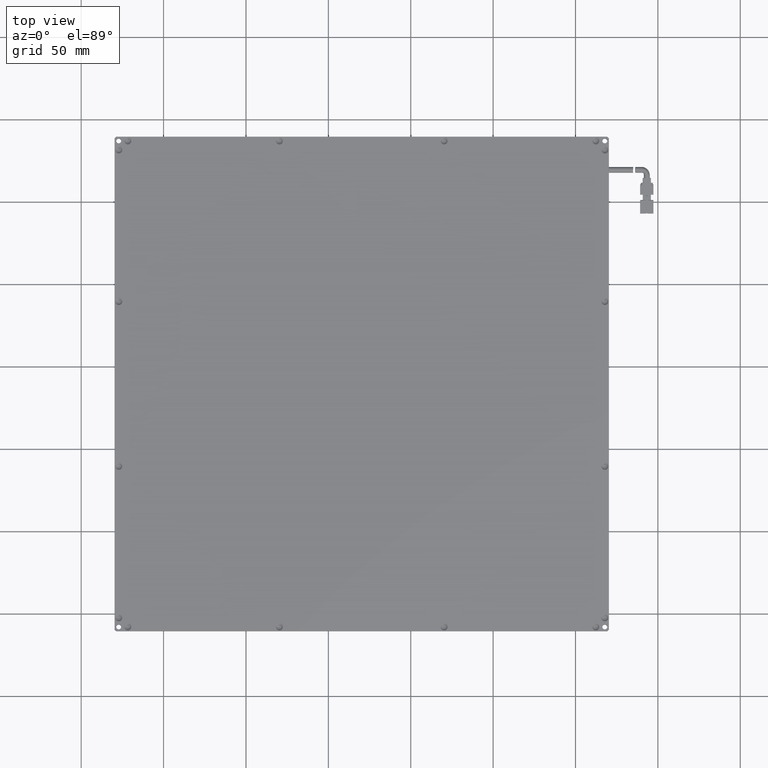
[diagram: clean part render]
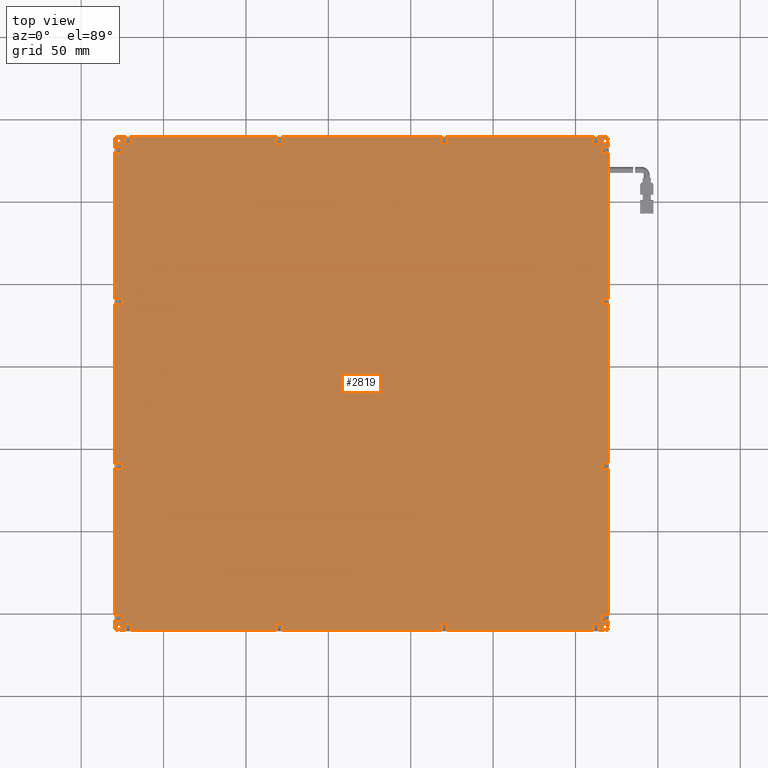
[diagram: same view with one face highlighted and labeled with its STEP entity id]
A machine part, top view. The second image highlights one B-rep face of the part: STEP entity #2819.
In plain terms, the highlighted planar face has unit normal (0, 0, -1).
Its self-contained STEP definition (entity closure, byte-faithful):
#63 = AXIS2_PLACEMENT_3D ( 'NONE', #7505, #17792, #8978 ) ;
#78 = VERTEX_POINT ( 'NONE', #6452 ) ;
#80 = CARTESIAN_POINT ( 'NONE',  ( 119.1898095717894000, -110.3461928934011100, 7.999999999999930700 ) ) ;
#106 = EDGE_CURVE ( 'NONE', #7603, #7879, #8985, .T. ) ;
#116 = VERTEX_POINT ( 'NONE', #6771 ) ;
#232 = EDGE_LOOP ( 'NONE', ( #4426, #6752 ) ) ;
#252 = EDGE_CURVE ( 'NONE', #12221, #8494, #4846, .T. ) ;
#301 = VERTEX_POINT ( 'NONE', #1532 ) ;
#304 = VERTEX_POINT ( 'NONE', #12963 ) ;
#404 = CIRCLE ( 'NONE', #3360, 2.199999999916157900 ) ;
#449 = CARTESIAN_POINT ( 'NONE',  ( 110.0726522843314100, 186.9538071065989000, 7.999999999985834400 ) ) ;
#454 = EDGE_CURVE ( 'NONE', #18631, #17599, #5308, .T. ) ;
#457 = CIRCLE ( 'NONE', #11933, 2.199999999997537300 ) ;
#482 = DIRECTION ( 'NONE',  ( 1.000000000000000000, 0.0000000000000000000, 0.0000000000000000000 ) ) ;
#488 = EDGE_CURVE ( 'NONE', #16117, #2054, #15185, .T. ) ;
#492 = EDGE_LOOP ( 'NONE', ( #9867, #718 ) ) ;
#508 = CARTESIAN_POINT ( 'NONE',  ( 120.0726522842640400, 188.3709643941241200, 7.999999999999932500 ) ) ;
#590 = CIRCLE ( 'NONE', #14096, 1.500000000000001300 ) ;
#642 = CARTESIAN_POINT ( 'NONE',  ( 117.7726522842639600, -108.0461928934010800, 7.999999999999930700 ) ) ;
#652 = DIRECTION ( 'NONE',  ( 0.0000000000000000000, -1.000000000000000000, 0.0000000000000000000 ) ) ;
#670 = CARTESIAN_POINT ( 'NONE',  ( -179.5273477157360600, 189.4538071065989000, 7.999999999999930700 ) ) ;
#712 = EDGE_CURVE ( 'NONE', #6444, #18386, #14701, .T. ) ;
#718 = ORIENTED_EDGE ( 'NONE', *, *, #4960, .F. ) ;
#800 = ORIENTED_EDGE ( 'NONE', *, *, #2464, .T. ) ;
#821 = VERTEX_POINT ( 'NONE', #7912 ) ;
#831 = DIRECTION ( 'NONE',  ( 0.0000000000000000000, -0.0000000000000000000, 1.000000000000000000 ) ) ;
#902 = AXIS2_PLACEMENT_3D ( 'NONE', #8313, #18618, #9787 ) ;
#977 = DIRECTION ( 'NONE',  ( 1.000000000000000000, 0.0000000000000000000, 0.0000000000000000000 ) ) ;
#1019 = EDGE_CURVE ( 'NONE', #9193, #18666, #8902, .T. ) ;
#1092 = CARTESIAN_POINT ( 'NONE',  ( 18.07265228431595400, 186.9538071065989000, 7.999999999985834400 ) ) ;
#1153 = DIRECTION ( 'NONE',  ( 0.0000000000000000000, -1.000000000000000000, 0.0000000000000000000 ) ) ;
#1168 = DIRECTION ( 'NONE',  ( 0.0000000000000000000, -1.000000000000000000, 0.0000000000000000000 ) ) ;
#1182 = EDGE_CURVE ( 'NONE', #11834, #14390, #11492, .T. ) ;
#1239 = CARTESIAN_POINT ( 'NONE',  ( -177.2273477157360400, -102.5461928934010800, 7.999999999985834400 ) ) ;
#1245 = CARTESIAN_POINT ( 'NONE',  ( 117.7726522842639600, -102.5461928934010800, 8.000000000042677000 ) ) ;
#1276 = CIRCLE ( 'NONE', #13205, 1.500000000000001300 ) ;
#1299 = CARTESIAN_POINT ( 'NONE',  ( -179.5273477157360600, 188.3709643941241700, 7.999999999999930700 ) ) ;
#1353 = EDGE_CURVE ( 'NONE', #2054, #16117, #9607, .T. ) ;
#1355 = AXIS2_PLACEMENT_3D ( 'NONE', #642, #10900, #2108 ) ;
#1444 = ORIENTED_EDGE ( 'NONE', *, *, #488, .F. ) ;
#1449 = DIRECTION ( 'NONE',  ( 1.000000000000000000, 0.0000000000000000000, 0.0000000000000000000 ) ) ;
#1471 = FACE_BOUND ( 'NONE', #7766, .T. ) ;
#1487 = AXIS2_PLACEMENT_3D ( 'NONE', #17145, #16958, #16902 ) ;
#1532 = CARTESIAN_POINT ( 'NONE',  ( -175.7273477157360400, 186.9538071065989000, 7.999999999999930700 ) ) ;
#1551 = CARTESIAN_POINT ( 'NONE',  ( -179.5273477157360600, 188.3709643941241700, 7.999999999999930700 ) ) ;
#1578 = CIRCLE ( 'NONE', #18961, 2.199999999916157900 ) ;
#1625 = AXIS2_PLACEMENT_3D ( 'NONE', #14870, #16046, #15979 ) ;
#1721 = DIRECTION ( 'NONE',  ( 0.0000000000000000000, 0.0000000000000000000, -1.000000000000000000 ) ) ;
#1757 = DIRECTION ( 'NONE',  ( 0.0000000000000000000, -0.0000000000000000000, 1.000000000000000000 ) ) ;
#1779 = VERTEX_POINT ( 'NONE', #7081 ) ;
#1798 = CARTESIAN_POINT ( 'NONE',  ( 112.2726522842639400, -108.0461928934010800, 7.999999999985834400 ) ) ;
#1808 = DIRECTION ( 'NONE',  ( 0.0000000000000000000, 9.856383386607548900E-017, 1.000000000000000000 ) ) ;
#1889 = CIRCLE ( 'NONE', #13303, 2.199999999916157900 ) ;
#1941 = FACE_BOUND ( 'NONE', #5983, .T. ) ;
#2054 = VERTEX_POINT ( 'NONE', #2450 ) ;
#2108 = DIRECTION ( 'NONE',  ( 1.000000000000000000, 0.0000000000000000000, 0.0000000000000000000 ) ) ;
#2185 = VERTEX_POINT ( 'NONE', #4350 ) ;
#2226 = EDGE_CURVE ( 'NONE', #11746, #11099, #14842, .T. ) ;
#2229 = CARTESIAN_POINT ( 'NONE',  ( 119.2726522842639600, 186.9538071065989000, 7.999999999999930700 ) ) ;
#2277 = EDGE_CURVE ( 'NONE', #7442, #821, #7677, .T. ) ;
#2394 = FACE_BOUND ( 'NONE', #17477, .T. ) ;
#2412 = CARTESIAN_POINT ( 'NONE',  ( 119.1898095717891800, 189.2538071065989100, 7.999999999999930700 ) ) ;
#2450 = CARTESIAN_POINT ( 'NONE',  ( 22.47265228421194300, -108.0461928934010800, 7.999999999985834400 ) ) ;
#2464 = EDGE_CURVE ( 'NONE', #17599, #18631, #1276, .T. ) ;
#2499 = AXIS2_PLACEMENT_3D ( 'NONE', #5572, #15857, #7046 ) ;
#2524 = CIRCLE ( 'NONE', #4294, 1.500000000000001300 ) ;
#2553 = CARTESIAN_POINT ( 'NONE',  ( 22.47265228421194300, 186.9538071065989000, 7.999999999985834400 ) ) ;
#2582 = CIRCLE ( 'NONE', #18138, 2.199999999916157900 ) ;
#2592 = AXIS2_PLACEMENT_3D ( 'NONE', #18742, #9929, #1168 ) ;
#2668 = EDGE_CURVE ( 'NONE', #5337, #18143, #15727, .T. ) ;
#2680 = DIRECTION ( 'NONE',  ( 1.000000000000000000, 0.0000000000000000000, 0.0000000000000000000 ) ) ;
#2684 = DIRECTION ( 'NONE',  ( 0.0000000000000000000, -1.000000000000000000, 0.0000000000000000000 ) ) ;
#2695 = CIRCLE ( 'NONE', #902, 2.199999999947993800 ) ;
#2696 = EDGE_CURVE ( 'NONE', #15438, #18906, #13888, .T. ) ;
#2727 = ORIENTED_EDGE ( 'NONE', *, *, #2696, .F. ) ;
#2815 = FACE_BOUND ( 'NONE', #8740, .T. ) ;
#2818 = LINE ( 'NONE', #670, #10174 ) ;
#2819 = ADVANCED_FACE ( 'NONE', ( #10636, #18470, #18913, #6738, #2815, #17992, #14115, #10171, #6283, #2394, #17538, #13646, #9714, #5823, #1941, #17087, #13196, #9240, #5364, #1471, #16625 ), #8646, .F. ) ;
#2862 = DIRECTION ( 'NONE',  ( 0.0000000000000000000, 9.856383386607548900E-017, 1.000000000000000000 ) ) ;
#2908 = AXIS2_PLACEMENT_3D ( 'NONE', #16027, #7189, #17482 ) ;
#2993 = ORIENTED_EDGE ( 'NONE', *, *, #6763, .F. ) ;
#3031 = ORIENTED_EDGE ( 'NONE', *, *, #14953, .T. ) ;
#3149 = EDGE_CURVE ( 'NONE', #14940, #17737, #6376, .T. ) ;
#3221 = DIRECTION ( 'NONE',  ( 1.000000000000000000, 0.0000000000000000000, 0.0000000000000000000 ) ) ;
#3360 = AXIS2_PLACEMENT_3D ( 'NONE', #1245, #11510, #2684 ) ;
#3386 = DIRECTION ( 'NONE',  ( 0.7071067811865474600, -0.7071067811865474600, 0.0000000000000000000 ) ) ;
#3403 = VECTOR ( 'NONE', #5567, 1000.000000000000100 ) ;
#3614 = VERTEX_POINT ( 'NONE', #2553 ) ;
#3667 = VECTOR ( 'NONE', #3386, 1000.000000000000100 ) ;
#3693 = EDGE_CURVE ( 'NONE', #14323, #11701, #17371, .T. ) ;
#3696 = CARTESIAN_POINT ( 'NONE',  ( 119.1898095717892400, 189.2538071065989100, 7.999999999999928900 ) ) ;
#3784 = CIRCLE ( 'NONE', #18381, 2.199999999916157900 ) ;
#3802 = EDGE_CURVE ( 'NONE', #6340, #14587, #11868, .T. ) ;
#3986 = ORIENTED_EDGE ( 'NONE', *, *, #252, .T. ) ;
#4074 = VERTEX_POINT ( 'NONE', #9801 ) ;
#4097 = LINE ( 'NONE', #1551, #11935 ) ;
#4110 = EDGE_CURVE ( 'NONE', #18666, #9193, #15286, .T. ) ;
#4167 = EDGE_CURVE ( 'NONE', #78, #5994, #13454, .T. ) ;
#4186 = CARTESIAN_POINT ( 'NONE',  ( 117.7726522842639600, -8.346192893484927200, 8.000000000042677000 ) ) ;
#4187 = EDGE_LOOP ( 'NONE', ( #12714, #15220 ) ) ;
#4199 = CARTESIAN_POINT ( 'NONE',  ( 117.7726522842639600, 181.4538071065989000, 8.000000000042677000 ) ) ;
#4294 = AXIS2_PLACEMENT_3D ( 'NONE', #4963, #15237, #6433 ) ;
#4321 = CIRCLE ( 'NONE', #1355, 1.500000000000001300 ) ;
#4334 = ORIENTED_EDGE ( 'NONE', *, *, #17325, .F. ) ;
#4350 = CARTESIAN_POINT ( 'NONE',  ( 117.7726522842639600, 91.65380710651504600, 8.000000000042677000 ) ) ;
#4426 = ORIENTED_EDGE ( 'NONE', *, *, #10690, .T. ) ;
#4504 = CARTESIAN_POINT ( 'NONE',  ( -79.72734771573603000, 186.9538071065989000, 7.999999999985834400 ) ) ;
#4758 = CARTESIAN_POINT ( 'NONE',  ( -179.4273477157499600, 89.45380710659888700, 7.999999999985834400 ) ) ;
#4766 = VERTEX_POINT ( 'NONE', #15222 ) ;
#4828 = EDGE_CURVE ( 'NONE', #304, #6710, #2818, .T. ) ;
#4829 = ORIENTED_EDGE ( 'NONE', *, *, #13660, .F. ) ;
#4846 = CIRCLE ( 'NONE', #11218, 1.500000000000001300 ) ;
#4960 = EDGE_CURVE ( 'NONE', #14587, #6340, #7873, .T. ) ;
#4963 = CARTESIAN_POINT ( 'NONE',  ( -177.2273477157360400, -108.0461928934010800, 7.999999999999930700 ) ) ;
#5024 = ORIENTED_EDGE ( 'NONE', *, *, #9112, .F. ) ;
#5093 = ORIENTED_EDGE ( 'NONE', *, *, #2668, .F. ) ;
#5126 = ORIENTED_EDGE ( 'NONE', *, *, #1019, .T. ) ;
#5142 = DIRECTION ( 'NONE',  ( 0.0000000000000000000, 1.000000000000000000, 0.0000000000000000000 ) ) ;
#5303 = EDGE_CURVE ( 'NONE', #1779, #7006, #17268, .T. ) ;
#5308 = CIRCLE ( 'NONE', #14776, 1.500000000000001300 ) ;
#5314 = ORIENTED_EDGE ( 'NONE', *, *, #13800, .F. ) ;
#5321 = EDGE_LOOP ( 'NONE', ( #8492, #18850 ) ) ;
#5337 = VERTEX_POINT ( 'NONE', #5642 ) ;
#5364 = FACE_BOUND ( 'NONE', #12173, .T. ) ;
#5399 = DIRECTION ( 'NONE',  ( -0.7071067811865489100, 0.7071067811865462400, 0.0000000000000000000 ) ) ;
#5421 = CARTESIAN_POINT ( 'NONE',  ( -177.2273477157360400, -8.346192893387172500, 8.000000000042677000 ) ) ;
#5493 = CARTESIAN_POINT ( 'NONE',  ( -178.6445050032614600, -110.3461928934011100, 7.999999999999932500 ) ) ;
#5561 = DIRECTION ( 'NONE',  ( 1.000000000000000000, -0.0000000000000000000, 0.0000000000000000000 ) ) ;
#5567 = DIRECTION ( 'NONE',  ( -0.7071067811865474600, -0.7071067811865474600, 0.0000000000000000000 ) ) ;
#5572 = CARTESIAN_POINT ( 'NONE',  ( -177.2273477157360400, 186.9538071065989000, 7.999999999999930700 ) ) ;
#5642 = CARTESIAN_POINT ( 'NONE',  ( -173.9273477157335600, -108.0461928934010800, 8.000000000042677000 ) ) ;
#5674 = DIRECTION ( 'NONE',  ( 0.0000000000000000000, -1.000000000000000000, 0.0000000000000000000 ) ) ;
#5806 = EDGE_CURVE ( 'NONE', #821, #7442, #11963, .T. ) ;
#5823 = FACE_BOUND ( 'NONE', #8702, .T. ) ;
#5932 = DIRECTION ( 'NONE',  ( 0.0000000000000000000, 0.0000000000000000000, -1.000000000000000000 ) ) ;
#5983 = EDGE_LOOP ( 'NONE', ( #15190, #5993 ) ) ;
#5988 = DIRECTION ( 'NONE',  ( 1.000000000000000000, 0.0000000000000000000, 0.0000000000000000000 ) ) ;
#5993 = ORIENTED_EDGE ( 'NONE', *, *, #9613, .F. ) ;
#5994 = VERTEX_POINT ( 'NONE', #8974 ) ;
#6011 = EDGE_LOOP ( 'NONE', ( #800, #6272 ) ) ;
#6029 = CARTESIAN_POINT ( 'NONE',  ( 110.0726522843314100, -108.0461928934010800, 7.999999999985834400 ) ) ;
#6104 = DIRECTION ( 'NONE',  ( 0.0000000000000000000, 9.856383386607486000E-017, 1.000000000000000000 ) ) ;
#6246 = CARTESIAN_POINT ( 'NONE',  ( 117.7726522842639600, 186.9538071065989000, 7.999999999999930700 ) ) ;
#6272 = ORIENTED_EDGE ( 'NONE', *, *, #454, .T. ) ;
#6281 = CARTESIAN_POINT ( 'NONE',  ( -177.2273477157360400, 183.6538071066128200, 8.000000000042677000 ) ) ;
#6283 = FACE_BOUND ( 'NONE', #18390, .T. ) ;
#6340 = VERTEX_POINT ( 'NONE', #9034 ) ;
#6376 = CIRCLE ( 'NONE', #1487, 2.200000000013913000 ) ;
#6391 = CARTESIAN_POINT ( 'NONE',  ( 117.7726522842639600, -108.0461928934010800, 7.999999999999930700 ) ) ;
#6414 = EDGE_CURVE ( 'NONE', #11701, #14323, #10089, .T. ) ;
#6433 = DIRECTION ( 'NONE',  ( 1.000000000000000000, 0.0000000000000000000, 0.0000000000000000000 ) ) ;
#6444 = VERTEX_POINT ( 'NONE', #16644 ) ;
#6452 = CARTESIAN_POINT ( 'NONE',  ( 117.7726522842639600, -100.3461928934849300, 8.000000000042677000 ) ) ;
#6470 = CARTESIAN_POINT ( 'NONE',  ( 117.7726522842639600, -10.54619289340108400, 8.000000000042677000 ) ) ;
#6519 = DIRECTION ( 'NONE',  ( 0.0000000000000000000, 0.0000000000000000000, -1.000000000000000000 ) ) ;
#6640 = DIRECTION ( 'NONE',  ( 1.000000000000000000, 0.0000000000000000000, 0.0000000000000000000 ) ) ;
#6708 = ORIENTED_EDGE ( 'NONE', *, *, #5806, .T. ) ;
#6710 = VERTEX_POINT ( 'NONE', #1299 ) ;
#6738 = FACE_BOUND ( 'NONE', #11305, .T. ) ;
#6752 = ORIENTED_EDGE ( 'NONE', *, *, #712, .T. ) ;
#6763 = EDGE_CURVE ( 'NONE', #18143, #5337, #457, .T. ) ;
#6771 = CARTESIAN_POINT ( 'NONE',  ( 117.7726522842639600, -12.74619289331724300, 8.000000000042677000 ) ) ;
#6817 = CIRCLE ( 'NONE', #2499, 1.500000000000001300 ) ;
#6842 = EDGE_CURVE ( 'NONE', #6710, #4766, #4097, .T. ) ;
#6845 = EDGE_LOOP ( 'NONE', ( #4334, #14677, #14228, #5024, #12393, #7077, #13079, #2727 ) ) ;
#6916 = EDGE_LOOP ( 'NONE', ( #6708, #14093 ) ) ;
#6958 = EDGE_CURVE ( 'NONE', #8494, #12221, #4321, .T. ) ;
#7006 = VERTEX_POINT ( 'NONE', #18200 ) ;
#7014 = DIRECTION ( 'NONE',  ( -0.0000000000000000000, 0.0000000000000000000, -1.000000000000000000 ) ) ;
#7017 = EDGE_CURVE ( 'NONE', #18929, #7418, #14220, .T. ) ;
#7046 = DIRECTION ( 'NONE',  ( 1.000000000000000000, 0.0000000000000000000, 0.0000000000000000000 ) ) ;
#7077 = ORIENTED_EDGE ( 'NONE', *, *, #4828, .F. ) ;
#7081 = CARTESIAN_POINT ( 'NONE',  ( -179.4273477157499600, -102.5461928934010800, 7.999999999985834400 ) ) ;
#7091 = CARTESIAN_POINT ( 'NONE',  ( -173.9273477157335600, 186.9538071065989000, 8.000000000042677000 ) ) ;
#7189 = DIRECTION ( 'NONE',  ( 0.0000000000000000000, -0.0000000000000000000, 1.000000000000000000 ) ) ;
#7295 = CIRCLE ( 'NONE', #19027, 2.199999999916157900 ) ;
#7418 = VERTEX_POINT ( 'NONE', #13764 ) ;
#7442 = VERTEX_POINT ( 'NONE', #4758 ) ;
#7447 = DIRECTION ( 'NONE',  ( -1.000000000000000000, 0.0000000000000000000, -0.0000000000000000000 ) ) ;
#7505 = CARTESIAN_POINT ( 'NONE',  ( -171.7273477157360200, 186.9538071065989000, 8.000000000042677000 ) ) ;
#7509 = DIRECTION ( 'NONE',  ( 0.0000000000000000000, 0.0000000000000000000, -1.000000000000000000 ) ) ;
#7572 = CARTESIAN_POINT ( 'NONE',  ( -179.7273477157360400, 189.4538071065989000, 7.999999999999930700 ) ) ;
#7590 = ORIENTED_EDGE ( 'NONE', *, *, #106, .F. ) ;
#7599 = CARTESIAN_POINT ( 'NONE',  ( 120.0726522842639800, 189.4538071065989000, 7.999999999999930700 ) ) ;
#7603 = VERTEX_POINT ( 'NONE', #12748 ) ;
#7636 = EDGE_CURVE ( 'NONE', #18906, #304, #15329, .T. ) ;
#7654 = CIRCLE ( 'NONE', #8809, 2.200000000013913000 ) ;
#7677 = CIRCLE ( 'NONE', #9599, 2.200000000013913000 ) ;
#7688 = EDGE_CURVE ( 'NONE', #5994, #78, #404, .T. ) ;
#7766 = EDGE_LOOP ( 'NONE', ( #15377, #10065 ) ) ;
#7812 = CARTESIAN_POINT ( 'NONE',  ( -79.72734771573603000, 186.9538071065989000, 7.999999999985834400 ) ) ;
#7873 = CIRCLE ( 'NONE', #18848, 2.199999999932533700 ) ;
#7879 = VERTEX_POINT ( 'NONE', #11890 ) ;
#7912 = CARTESIAN_POINT ( 'NONE',  ( -175.0273477157221300, 89.45380710659888700, 7.999999999985834400 ) ) ;
#7924 = CARTESIAN_POINT ( 'NONE',  ( 114.4726522841964900, -108.0461928934010800, 7.999999999985834400 ) ) ;
#7936 = DIRECTION ( 'NONE',  ( 0.0000000000000000000, -1.000000000000000000, 0.0000000000000000000 ) ) ;
#7962 = VECTOR ( 'NONE', #5399, 1000.000000000000000 ) ;
#8113 = CARTESIAN_POINT ( 'NONE',  ( -79.72734771573603000, -108.0461928934010800, 7.999999999985834400 ) ) ;
#8122 = AXIS2_PLACEMENT_3D ( 'NONE', #8406, #14103, #14042 ) ;
#8173 = DIRECTION ( 'NONE',  ( 0.0000000000000000000, -0.0000000000000000000, 1.000000000000000000 ) ) ;
#8230 = DIRECTION ( 'NONE',  ( 1.000000000000000000, 0.0000000000000000000, 0.0000000000000000000 ) ) ;
#8232 = DIRECTION ( 'NONE',  ( 1.000000000000000000, 0.0000000000000000000, 0.0000000000000000000 ) ) ;
#8313 = CARTESIAN_POINT ( 'NONE',  ( 20.27265228426394800, 186.9538071065989000, 7.999999999985834400 ) ) ;
#8406 = CARTESIAN_POINT ( 'NONE',  ( -177.2273477157360400, -108.0461928934010800, 7.999999999999930700 ) ) ;
#8477 = AXIS2_PLACEMENT_3D ( 'NONE', #17392, #8570, #18871 ) ;
#8492 = ORIENTED_EDGE ( 'NONE', *, *, #14869, .F. ) ;
#8494 = VERTEX_POINT ( 'NONE', #10928 ) ;
#8542 = DIRECTION ( 'NONE',  ( 1.000000000000000000, 0.0000000000000000000, 0.0000000000000000000 ) ) ;
#8570 = DIRECTION ( 'NONE',  ( 0.0000000000000000000, 9.856383386607491000E-017, 1.000000000000000000 ) ) ;
#8586 = AXIS2_PLACEMENT_3D ( 'NONE', #4504, #14792, #5988 ) ;
#8646 = PLANE ( 'NONE',  #15410 ) ;
#8653 = DIRECTION ( 'NONE',  ( -0.0000000000000000000, 0.0000000000000000000, -1.000000000000000000 ) ) ;
#8675 = CARTESIAN_POINT ( 'NONE',  ( -171.7273477157360200, -108.0461928934010800, 8.000000000042677000 ) ) ;
#8677 = CARTESIAN_POINT ( 'NONE',  ( -177.2273477157360400, 89.45380710659888700, 7.999999999985834400 ) ) ;
#8678 = VERTEX_POINT ( 'NONE', #9911 ) ;
#8702 = EDGE_LOOP ( 'NONE', ( #13597, #5314 ) ) ;
#8740 = EDGE_LOOP ( 'NONE', ( #5126, #15929 ) ) ;
#8761 = ORIENTED_EDGE ( 'NONE', *, *, #14044, .T. ) ;
#8809 = AXIS2_PLACEMENT_3D ( 'NONE', #19008, #10208, #1449 ) ;
#8902 = CIRCLE ( 'NONE', #12558, 2.200000000013913000 ) ;
#8974 = CARTESIAN_POINT ( 'NONE',  ( 117.7726522842639600, -104.7461928933172400, 8.000000000042677000 ) ) ;
#8978 = DIRECTION ( 'NONE',  ( 1.000000000000000000, 0.0000000000000000000, 0.0000000000000000000 ) ) ;
#8985 = CIRCLE ( 'NONE', #13543, 2.200000000038921000 ) ;
#8988 = AXIS2_PLACEMENT_3D ( 'NONE', #1798, #12069, #3221 ) ;
#8995 = DIRECTION ( 'NONE',  ( 1.000000000000000000, 0.0000000000000000000, 0.0000000000000000000 ) ) ;
#9034 = CARTESIAN_POINT ( 'NONE',  ( 114.4726522841964900, 186.9538071065989000, 7.999999999985834400 ) ) ;
#9071 = VERTEX_POINT ( 'NONE', #1092 ) ;
#9112 = EDGE_CURVE ( 'NONE', #4766, #11834, #14335, .T. ) ;
#9192 = CARTESIAN_POINT ( 'NONE',  ( -77.52734771569710400, 186.9538071065989000, 7.999999999985834400 ) ) ;
#9193 = VERTEX_POINT ( 'NONE', #11728 ) ;
#9201 = AXIS2_PLACEMENT_3D ( 'NONE', #18040, #9226, #482 ) ;
#9226 = DIRECTION ( 'NONE',  ( 0.0000000000000000000, -0.0000000000000000000, 1.000000000000000000 ) ) ;
#9240 = FACE_BOUND ( 'NONE', #15146, .T. ) ;
#9244 = VECTOR ( 'NONE', #5561, 1000.000000000000000 ) ;
#9251 = DIRECTION ( 'NONE',  ( 0.0000000000000000000, 0.0000000000000000000, -1.000000000000000000 ) ) ;
#9284 = DIRECTION ( 'NONE',  ( 1.000000000000000000, 0.0000000000000000000, 0.0000000000000000000 ) ) ;
#9390 = DIRECTION ( 'NONE',  ( 0.0000000000000000000, 9.856383386607486000E-017, 1.000000000000000000 ) ) ;
#9544 = CARTESIAN_POINT ( 'NONE',  ( 20.27265228426394800, -108.0461928934010800, 7.999999999985834400 ) ) ;
#9579 = CARTESIAN_POINT ( 'NONE',  ( -171.7273477157360200, 186.9538071065989000, 8.000000000042677000 ) ) ;
#9580 = CARTESIAN_POINT ( 'NONE',  ( 117.7726522842639600, 186.9538071065989000, 7.999999999999930700 ) ) ;
#9599 = AXIS2_PLACEMENT_3D ( 'NONE', #8677, #8653, #8542 ) ;
#9607 = CIRCLE ( 'NONE', #9817, 2.199999999947993800 ) ;
#9613 = EDGE_CURVE ( 'NONE', #2185, #8678, #7295, .T. ) ;
#9623 = DIRECTION ( 'NONE',  ( 0.0000000000000000000, -0.0000000000000000000, 1.000000000000000000 ) ) ;
#9646 = DIRECTION ( 'NONE',  ( 1.000000000000000000, 0.0000000000000000000, 0.0000000000000000000 ) ) ;
#9714 = FACE_BOUND ( 'NONE', #10331, .T. ) ;
#9738 = DIRECTION ( 'NONE',  ( 0.0000000000000000000, -0.0000000000000000000, 1.000000000000000000 ) ) ;
#9787 = DIRECTION ( 'NONE',  ( 1.000000000000000000, 0.0000000000000000000, 0.0000000000000000000 ) ) ;
#9801 = CARTESIAN_POINT ( 'NONE',  ( 120.0726522842640400, -109.4633501809265700, 7.999999999999918300 ) ) ;
#9817 = AXIS2_PLACEMENT_3D ( 'NONE', #9544, #9623, #9646 ) ;
#9867 = ORIENTED_EDGE ( 'NONE', *, *, #3802, .F. ) ;
#9905 = DIRECTION ( 'NONE',  ( 0.0000000000000000000, 9.856383386169525300E-017, 1.000000000000000000 ) ) ;
#9911 = CARTESIAN_POINT ( 'NONE',  ( 117.7726522842639600, 87.25380710668272900, 8.000000000042677000 ) ) ;
#9929 = DIRECTION ( 'NONE',  ( -0.0000000000000000000, -9.856383386169525300E-017, -1.000000000000000000 ) ) ;
#9941 = ORIENTED_EDGE ( 'NONE', *, *, #6958, .T. ) ;
#9952 = CARTESIAN_POINT ( 'NONE',  ( 119.2726522842639600, -108.0461928934010800, 7.999999999999930700 ) ) ;
#10019 = AXIS2_PLACEMENT_3D ( 'NONE', #18221, #9390, #652 ) ;
#10065 = ORIENTED_EDGE ( 'NONE', *, *, #7017, .F. ) ;
#10089 = CIRCLE ( 'NONE', #11668, 2.200000000038921000 ) ;
#10171 = FACE_BOUND ( 'NONE', #13807, .T. ) ;
#10174 = VECTOR ( 'NONE', #5142, 1000.000000000000000 ) ;
#10183 = AXIS2_PLACEMENT_3D ( 'NONE', #9579, #831, #11094 ) ;
#10185 = DIRECTION ( 'NONE',  ( 1.000000000000000000, 0.0000000000000000000, 0.0000000000000000000 ) ) ;
#10208 = DIRECTION ( 'NONE',  ( 0.0000000000000000000, -0.0000000000000000000, 1.000000000000000000 ) ) ;
#10218 = CARTESIAN_POINT ( 'NONE',  ( -177.2273477157360400, -12.74619289341499800, 8.000000000042677000 ) ) ;
#10331 = EDGE_LOOP ( 'NONE', ( #11999, #11534 ) ) ;
#10517 = CARTESIAN_POINT ( 'NONE',  ( -79.72734771573603000, -108.0461928934010800, 7.999999999985834400 ) ) ;
#10554 = ORIENTED_EDGE ( 'NONE', *, *, #11338, .F. ) ;
#10561 = EDGE_LOOP ( 'NONE', ( #3986, #9941 ) ) ;
#10564 = CARTESIAN_POINT ( 'NONE',  ( 117.7726522842639600, 89.45380710659888700, 8.000000000042677000 ) ) ;
#10636 = FACE_BOUND ( 'NONE', #232, .T. ) ;
#10690 = EDGE_CURVE ( 'NONE', #18386, #6444, #2524, .T. ) ;
#10900 = DIRECTION ( 'NONE',  ( 0.0000000000000000000, 0.0000000000000000000, -1.000000000000000000 ) ) ;
#10928 = CARTESIAN_POINT ( 'NONE',  ( 116.2726522842639600, -108.0461928934010800, 7.999999999999930700 ) ) ;
#11094 = DIRECTION ( 'NONE',  ( 1.000000000000000000, 0.0000000000000000000, 0.0000000000000000000 ) ) ;
#11099 = VERTEX_POINT ( 'NONE', #6029 ) ;
#11218 = AXIS2_PLACEMENT_3D ( 'NONE', #6391, #6519, #6640 ) ;
#11221 = AXIS2_PLACEMENT_3D ( 'NONE', #18724, #9905, #1153 ) ;
#11267 = CIRCLE ( 'NONE', #10019, 2.199999999916157900 ) ;
#11305 = EDGE_LOOP ( 'NONE', ( #8761, #3031 ) ) ;
#11338 = EDGE_CURVE ( 'NONE', #3614, #9071, #2695, .T. ) ;
#11456 = CIRCLE ( 'NONE', #17360, 2.200000000038921000 ) ;
#11492 = LINE ( 'NONE', #2412, #3667 ) ;
#11507 = DIRECTION ( 'NONE',  ( 0.0000000000000000000, -0.0000000000000000000, 1.000000000000000000 ) ) ;
#11510 = DIRECTION ( 'NONE',  ( 0.0000000000000000000, 9.856383386607491000E-017, 1.000000000000000000 ) ) ;
#11534 = ORIENTED_EDGE ( 'NONE', *, *, #4167, .F. ) ;
#11590 = CARTESIAN_POINT ( 'NONE',  ( 18.07265228431595400, -108.0461928934010800, 7.999999999985834400 ) ) ;
#11668 = AXIS2_PLACEMENT_3D ( 'NONE', #7812, #18107, #9284 ) ;
#11694 = CARTESIAN_POINT ( 'NONE',  ( 117.7726522842639600, 89.45380710659888700, 8.000000000042677000 ) ) ;
#11701 = VERTEX_POINT ( 'NONE', #9192 ) ;
#11709 = VERTEX_POINT ( 'NONE', #12194 ) ;
#11727 = VERTEX_POINT ( 'NONE', #15199 ) ;
#11728 = CARTESIAN_POINT ( 'NONE',  ( -177.2273477157360400, 179.2538071065849900, 8.000000000042677000 ) ) ;
#11746 = VERTEX_POINT ( 'NONE', #7924 ) ;
#11755 = CARTESIAN_POINT ( 'NONE',  ( -178.7273477157360400, 186.9538071065989000, 7.999999999999930700 ) ) ;
#11834 = VERTEX_POINT ( 'NONE', #3696 ) ;
#11868 = CIRCLE ( 'NONE', #9201, 2.199999999932533700 ) ;
#11890 = CARTESIAN_POINT ( 'NONE',  ( -81.92734771577495700, -108.0461928934010800, 7.999999999985834400 ) ) ;
#11933 = AXIS2_PLACEMENT_3D ( 'NONE', #8675, #18986, #10185 ) ;
#11935 = VECTOR ( 'NONE', #13235, 1000.000000000000000 ) ;
#11963 = CIRCLE ( 'NONE', #15094, 2.200000000013913000 ) ;
#11994 = EDGE_LOOP ( 'NONE', ( #15210, #13837 ) ) ;
#11999 = ORIENTED_EDGE ( 'NONE', *, *, #7688, .F. ) ;
#12026 = DIRECTION ( 'NONE',  ( 1.000000000000000000, 0.0000000000000000000, 0.0000000000000000000 ) ) ;
#12069 = DIRECTION ( 'NONE',  ( 0.0000000000000000000, -0.0000000000000000000, 1.000000000000000000 ) ) ;
#12077 = DIRECTION ( 'NONE',  ( 0.0000000000000000000, -1.000000000000000000, 0.0000000000000000000 ) ) ;
#12173 = EDGE_LOOP ( 'NONE', ( #15156, #17222 ) ) ;
#12194 = CARTESIAN_POINT ( 'NONE',  ( 117.7726522842639600, 179.2538071066827300, 8.000000000042677000 ) ) ;
#12221 = VERTEX_POINT ( 'NONE', #9952 ) ;
#12239 = ORIENTED_EDGE ( 'NONE', *, *, #5303, .F. ) ;
#12267 = DIRECTION ( 'NONE',  ( 1.000000000000000000, 0.0000000000000000000, 0.0000000000000000000 ) ) ;
#12305 = EDGE_CURVE ( 'NONE', #9071, #3614, #12782, .T. ) ;
#12321 = EDGE_CURVE ( 'NONE', #7006, #1779, #7654, .T. ) ;
#12333 = DIRECTION ( 'NONE',  ( 0.0000000000000000000, -0.0000000000000000000, 1.000000000000000000 ) ) ;
#12393 = ORIENTED_EDGE ( 'NONE', *, *, #6842, .F. ) ;
#12453 = CARTESIAN_POINT ( 'NONE',  ( 112.2726522842639400, -108.0461928934010800, 7.999999999985834400 ) ) ;
#12558 = AXIS2_PLACEMENT_3D ( 'NONE', #17663, #17601, #17853 ) ;
#12714 = ORIENTED_EDGE ( 'NONE', *, *, #3149, .F. ) ;
#12748 = CARTESIAN_POINT ( 'NONE',  ( -77.52734771569710400, -108.0461928934010800, 7.999999999985834400 ) ) ;
#12782 = CIRCLE ( 'NONE', #2908, 2.199999999947993800 ) ;
#12933 = VERTEX_POINT ( 'NONE', #11755 ) ;
#12963 = CARTESIAN_POINT ( 'NONE',  ( -179.5273477157360600, -109.4633501809265700, 7.999999999999932500 ) ) ;
#13031 = EDGE_CURVE ( 'NONE', #8678, #2185, #1889, .T. ) ;
#13079 = ORIENTED_EDGE ( 'NONE', *, *, #7636, .F. ) ;
#13111 = ORIENTED_EDGE ( 'NONE', *, *, #12305, .F. ) ;
#13181 = DIRECTION ( 'NONE',  ( 0.0000000000000000000, -1.000000000000000000, 0.0000000000000000000 ) ) ;
#13196 = FACE_BOUND ( 'NONE', #492, .T. ) ;
#13205 = AXIS2_PLACEMENT_3D ( 'NONE', #9580, #9251, #8230 ) ;
#13235 = DIRECTION ( 'NONE',  ( 0.7071067811865515700, 0.7071067811865435800, 0.0000000000000000000 ) ) ;
#13303 = AXIS2_PLACEMENT_3D ( 'NONE', #10564, #1808, #12077 ) ;
#13427 = VECTOR ( 'NONE', #13452, 1000.000000000000000 ) ;
#13452 = DIRECTION ( 'NONE',  ( -1.000000000000000000, 0.0000000000000000000, -0.0000000000000000000 ) ) ;
#13454 = CIRCLE ( 'NONE', #8477, 2.199999999916157900 ) ;
#13543 = AXIS2_PLACEMENT_3D ( 'NONE', #8113, #8173, #8232 ) ;
#13581 = CARTESIAN_POINT ( 'NONE',  ( -179.7273477157360400, -110.3461928934011100, 7.999999999999930700 ) ) ;
#13597 = ORIENTED_EDGE ( 'NONE', *, *, #16264, .F. ) ;
#13646 = FACE_BOUND ( 'NONE', #11994, .T. ) ;
#13660 = EDGE_CURVE ( 'NONE', #7879, #7603, #11456, .T. ) ;
#13764 = CARTESIAN_POINT ( 'NONE',  ( -169.5273477157385000, 186.9538071065989000, 8.000000000042677000 ) ) ;
#13765 = DIRECTION ( 'NONE',  ( 1.000000000000000000, 0.0000000000000000000, 0.0000000000000000000 ) ) ;
#13800 = EDGE_CURVE ( 'NONE', #17858, #116, #1578, .T. ) ;
#13807 = EDGE_LOOP ( 'NONE', ( #14077, #12239 ) ) ;
#13837 = ORIENTED_EDGE ( 'NONE', *, *, #14283, .F. ) ;
#13851 = DIRECTION ( 'NONE',  ( 0.0000000000000000000, -0.0000000000000000000, 1.000000000000000000 ) ) ;
#13888 = LINE ( 'NONE', #13581, #13427 ) ;
#13915 = CARTESIAN_POINT ( 'NONE',  ( -171.7273477157360200, -108.0461928934010800, 8.000000000042677000 ) ) ;
#14042 = DIRECTION ( 'NONE',  ( 1.000000000000000000, 0.0000000000000000000, 0.0000000000000000000 ) ) ;
#14044 = EDGE_CURVE ( 'NONE', #301, #12933, #6817, .T. ) ;
#14077 = ORIENTED_EDGE ( 'NONE', *, *, #12321, .F. ) ;
#14093 = ORIENTED_EDGE ( 'NONE', *, *, #2277, .T. ) ;
#14096 = AXIS2_PLACEMENT_3D ( 'NONE', #14727, #5932, #16224 ) ;
#14103 = DIRECTION ( 'NONE',  ( 0.0000000000000000000, 0.0000000000000000000, -1.000000000000000000 ) ) ;
#14115 = FACE_BOUND ( 'NONE', #4187, .T. ) ;
#14220 = CIRCLE ( 'NONE', #10183, 2.199999999997537300 ) ;
#14228 = ORIENTED_EDGE ( 'NONE', *, *, #1182, .F. ) ;
#14283 = EDGE_CURVE ( 'NONE', #11099, #11746, #18531, .T. ) ;
#14323 = VERTEX_POINT ( 'NONE', #15067 ) ;
#14335 = LINE ( 'NONE', #15839, #9244 ) ;
#14390 = VERTEX_POINT ( 'NONE', #508 ) ;
#14447 = CARTESIAN_POINT ( 'NONE',  ( -175.7273477157360400, -108.0461928934010800, 7.999999999999930700 ) ) ;
#14474 = DIRECTION ( 'NONE',  ( 0.0000000000000000000, 9.856383386607486000E-017, 1.000000000000000000 ) ) ;
#14516 = EDGE_LOOP ( 'NONE', ( #18434, #1444 ) ) ;
#14548 = EDGE_CURVE ( 'NONE', #14390, #4074, #17375, .T. ) ;
#14587 = VERTEX_POINT ( 'NONE', #449 ) ;
#14677 = ORIENTED_EDGE ( 'NONE', *, *, #14548, .F. ) ;
#14678 = LINE ( 'NONE', #17306, #3403 ) ;
#14701 = CIRCLE ( 'NONE', #8122, 1.500000000000001300 ) ;
#14727 = CARTESIAN_POINT ( 'NONE',  ( -177.2273477157360400, 186.9538071065989000, 7.999999999999930700 ) ) ;
#14776 = AXIS2_PLACEMENT_3D ( 'NONE', #6246, #1721, #8995 ) ;
#14792 = DIRECTION ( 'NONE',  ( 0.0000000000000000000, -0.0000000000000000000, 1.000000000000000000 ) ) ;
#14842 = CIRCLE ( 'NONE', #17847, 2.199999999932533700 ) ;
#14869 = EDGE_CURVE ( 'NONE', #11709, #11727, #3784, .T. ) ;
#14870 = CARTESIAN_POINT ( 'NONE',  ( 20.27265228426394800, -108.0461928934010800, 7.999999999985834400 ) ) ;
#14917 = CARTESIAN_POINT ( 'NONE',  ( 117.7726522842639600, -10.54619289340108400, 8.000000000042677000 ) ) ;
#14940 = VERTEX_POINT ( 'NONE', #10218 ) ;
#14953 = EDGE_CURVE ( 'NONE', #12933, #301, #590, .T. ) ;
#15007 = DIRECTION ( 'NONE',  ( -0.0000000000000000000, -1.000000000000000000, -0.0000000000000000000 ) ) ;
#15067 = CARTESIAN_POINT ( 'NONE',  ( -81.92734771577495700, 186.9538071065989000, 7.999999999985834400 ) ) ;
#15078 = CARTESIAN_POINT ( 'NONE',  ( 116.2726522842639600, 186.9538071065989000, 7.999999999999930700 ) ) ;
#15094 = AXIS2_PLACEMENT_3D ( 'NONE', #15822, #7014, #17287 ) ;
#15146 = EDGE_LOOP ( 'NONE', ( #10554, #13111 ) ) ;
#15156 = ORIENTED_EDGE ( 'NONE', *, *, #6414, .F. ) ;
#15185 = CIRCLE ( 'NONE', #1625, 2.199999999947993800 ) ;
#15190 = ORIENTED_EDGE ( 'NONE', *, *, #13031, .F. ) ;
#15199 = CARTESIAN_POINT ( 'NONE',  ( 117.7726522842639600, 183.6538071065150500, 8.000000000042677000 ) ) ;
#15210 = ORIENTED_EDGE ( 'NONE', *, *, #2226, .F. ) ;
#15220 = ORIENTED_EDGE ( 'NONE', *, *, #18904, .F. ) ;
#15222 = CARTESIAN_POINT ( 'NONE',  ( -178.6445050032613200, 189.2538071065989100, 7.999999999999934300 ) ) ;
#15237 = DIRECTION ( 'NONE',  ( 0.0000000000000000000, 0.0000000000000000000, -1.000000000000000000 ) ) ;
#15286 = CIRCLE ( 'NONE', #2592, 2.200000000013913000 ) ;
#15329 = LINE ( 'NONE', #18628, #7962 ) ;
#15377 = ORIENTED_EDGE ( 'NONE', *, *, #16251, .F. ) ;
#15410 = AXIS2_PLACEMENT_3D ( 'NONE', #7572, #7509, #7447 ) ;
#15438 = VERTEX_POINT ( 'NONE', #80 ) ;
#15727 = CIRCLE ( 'NONE', #15784, 2.199999999997537300 ) ;
#15784 = AXIS2_PLACEMENT_3D ( 'NONE', #13915, #13851, #13765 ) ;
#15822 = CARTESIAN_POINT ( 'NONE',  ( -177.2273477157360400, 89.45380710659888700, 7.999999999985834400 ) ) ;
#15839 = CARTESIAN_POINT ( 'NONE',  ( -179.7273477157360400, 189.2538071065989100, 7.999999999999930700 ) ) ;
#15857 = DIRECTION ( 'NONE',  ( 0.0000000000000000000, 0.0000000000000000000, -1.000000000000000000 ) ) ;
#15929 = ORIENTED_EDGE ( 'NONE', *, *, #4110, .T. ) ;
#15979 = DIRECTION ( 'NONE',  ( 1.000000000000000000, 0.0000000000000000000, 0.0000000000000000000 ) ) ;
#16027 = CARTESIAN_POINT ( 'NONE',  ( 20.27265228426394800, 186.9538071065989000, 7.999999999985834400 ) ) ;
#16046 = DIRECTION ( 'NONE',  ( 0.0000000000000000000, -0.0000000000000000000, 1.000000000000000000 ) ) ;
#16117 = VERTEX_POINT ( 'NONE', #11590 ) ;
#16224 = DIRECTION ( 'NONE',  ( 1.000000000000000000, 0.0000000000000000000, 0.0000000000000000000 ) ) ;
#16251 = EDGE_CURVE ( 'NONE', #7418, #18929, #18216, .T. ) ;
#16264 = EDGE_CURVE ( 'NONE', #116, #17858, #2582, .T. ) ;
#16396 = DIRECTION ( 'NONE',  ( 0.0000000000000000000, -1.000000000000000000, 0.0000000000000000000 ) ) ;
#16625 = FACE_OUTER_BOUND ( 'NONE', #6845, .T. ) ;
#16644 = CARTESIAN_POINT ( 'NONE',  ( -178.7273477157360400, -108.0461928934010800, 7.999999999999930700 ) ) ;
#16718 = CARTESIAN_POINT ( 'NONE',  ( -169.5273477157385000, -108.0461928934010800, 8.000000000042677000 ) ) ;
#16767 = DIRECTION ( 'NONE',  ( 0.0000000000000000000, 9.856383386607486000E-017, 1.000000000000000000 ) ) ;
#16902 = DIRECTION ( 'NONE',  ( 0.0000000000000000000, -1.000000000000000000, 0.0000000000000000000 ) ) ;
#16938 = VECTOR ( 'NONE', #15007, 1000.000000000000000 ) ;
#16958 = DIRECTION ( 'NONE',  ( 0.0000000000000000000, 9.856383386169525300E-017, 1.000000000000000000 ) ) ;
#17066 = EDGE_CURVE ( 'NONE', #11727, #11709, #11267, .T. ) ;
#17087 = FACE_BOUND ( 'NONE', #5321, .T. ) ;
#17145 = CARTESIAN_POINT ( 'NONE',  ( -177.2273477157360400, -10.54619289340108400, 8.000000000042677000 ) ) ;
#17180 = AXIS2_PLACEMENT_3D ( 'NONE', #1239, #11507, #2680 ) ;
#17222 = ORIENTED_EDGE ( 'NONE', *, *, #3693, .F. ) ;
#17268 = CIRCLE ( 'NONE', #17180, 2.200000000013913000 ) ;
#17287 = DIRECTION ( 'NONE',  ( 1.000000000000000000, 0.0000000000000000000, 0.0000000000000000000 ) ) ;
#17306 = CARTESIAN_POINT ( 'NONE',  ( 120.0726522842639800, -109.4633501809264800, 7.999999999999930700 ) ) ;
#17325 = EDGE_CURVE ( 'NONE', #4074, #15438, #14678, .T. ) ;
#17360 = AXIS2_PLACEMENT_3D ( 'NONE', #10517, #1757, #12026 ) ;
#17371 = CIRCLE ( 'NONE', #8586, 2.200000000038921000 ) ;
#17375 = LINE ( 'NONE', #7599, #16938 ) ;
#17392 = CARTESIAN_POINT ( 'NONE',  ( 117.7726522842639600, -102.5461928934010800, 8.000000000042677000 ) ) ;
#17477 = EDGE_LOOP ( 'NONE', ( #7590, #4829 ) ) ;
#17482 = DIRECTION ( 'NONE',  ( 1.000000000000000000, 0.0000000000000000000, 0.0000000000000000000 ) ) ;
#17538 = FACE_BOUND ( 'NONE', #14516, .T. ) ;
#17542 = CIRCLE ( 'NONE', #11221, 2.200000000013913000 ) ;
#17599 = VERTEX_POINT ( 'NONE', #2229 ) ;
#17601 = DIRECTION ( 'NONE',  ( -0.0000000000000000000, -9.856383386169525300E-017, -1.000000000000000000 ) ) ;
#17663 = CARTESIAN_POINT ( 'NONE',  ( -177.2273477157360400, 181.4538071065989000, 8.000000000042677000 ) ) ;
#17737 = VERTEX_POINT ( 'NONE', #5421 ) ;
#17792 = DIRECTION ( 'NONE',  ( 0.0000000000000000000, -0.0000000000000000000, 1.000000000000000000 ) ) ;
#17847 = AXIS2_PLACEMENT_3D ( 'NONE', #12453, #12333, #12267 ) ;
#17853 = DIRECTION ( 'NONE',  ( 0.0000000000000000000, -1.000000000000000000, 0.0000000000000000000 ) ) ;
#17858 = VERTEX_POINT ( 'NONE', #4186 ) ;
#17992 = FACE_BOUND ( 'NONE', #6916, .T. ) ;
#18040 = CARTESIAN_POINT ( 'NONE',  ( 112.2726522842639400, 186.9538071065989000, 7.999999999985834400 ) ) ;
#18107 = DIRECTION ( 'NONE',  ( 0.0000000000000000000, -0.0000000000000000000, 1.000000000000000000 ) ) ;
#18138 = AXIS2_PLACEMENT_3D ( 'NONE', #14917, #6104, #16396 ) ;
#18143 = VERTEX_POINT ( 'NONE', #16718 ) ;
#18200 = CARTESIAN_POINT ( 'NONE',  ( -175.0273477157221300, -102.5461928934010800, 7.999999999985834400 ) ) ;
#18216 = CIRCLE ( 'NONE', #63, 2.199999999997537300 ) ;
#18221 = CARTESIAN_POINT ( 'NONE',  ( 117.7726522842639600, 181.4538071065989000, 8.000000000042677000 ) ) ;
#18381 = AXIS2_PLACEMENT_3D ( 'NONE', #4199, #14474, #5674 ) ;
#18386 = VERTEX_POINT ( 'NONE', #14447 ) ;
#18390 = EDGE_LOOP ( 'NONE', ( #2993, #5093 ) ) ;
#18434 = ORIENTED_EDGE ( 'NONE', *, *, #1353, .F. ) ;
#18470 = FACE_BOUND ( 'NONE', #10561, .T. ) ;
#18531 = CIRCLE ( 'NONE', #8988, 2.199999999932533700 ) ;
#18553 = CARTESIAN_POINT ( 'NONE',  ( 112.2726522842639400, 186.9538071065989000, 7.999999999985834400 ) ) ;
#18618 = DIRECTION ( 'NONE',  ( 0.0000000000000000000, -0.0000000000000000000, 1.000000000000000000 ) ) ;
#18628 = CARTESIAN_POINT ( 'NONE',  ( -178.6445050032614900, -110.3461928934011100, 7.999999999999930700 ) ) ;
#18631 = VERTEX_POINT ( 'NONE', #15078 ) ;
#18666 = VERTEX_POINT ( 'NONE', #6281 ) ;
#18724 = CARTESIAN_POINT ( 'NONE',  ( -177.2273477157360400, -10.54619289340108400, 8.000000000042677000 ) ) ;
#18742 = CARTESIAN_POINT ( 'NONE',  ( -177.2273477157360400, 181.4538071065989000, 8.000000000042677000 ) ) ;
#18848 = AXIS2_PLACEMENT_3D ( 'NONE', #18553, #9738, #977 ) ;
#18850 = ORIENTED_EDGE ( 'NONE', *, *, #17066, .F. ) ;
#18871 = DIRECTION ( 'NONE',  ( 0.0000000000000000000, -1.000000000000000000, 0.0000000000000000000 ) ) ;
#18904 = EDGE_CURVE ( 'NONE', #17737, #14940, #17542, .T. ) ;
#18906 = VERTEX_POINT ( 'NONE', #5493 ) ;
#18913 = FACE_BOUND ( 'NONE', #6011, .T. ) ;
#18929 = VERTEX_POINT ( 'NONE', #7091 ) ;
#18961 = AXIS2_PLACEMENT_3D ( 'NONE', #6470, #16767, #7936 ) ;
#18986 = DIRECTION ( 'NONE',  ( 0.0000000000000000000, -0.0000000000000000000, 1.000000000000000000 ) ) ;
#19008 = CARTESIAN_POINT ( 'NONE',  ( -177.2273477157360400, -102.5461928934010800, 7.999999999985834400 ) ) ;
#19027 = AXIS2_PLACEMENT_3D ( 'NONE', #11694, #2862, #13181 ) ;